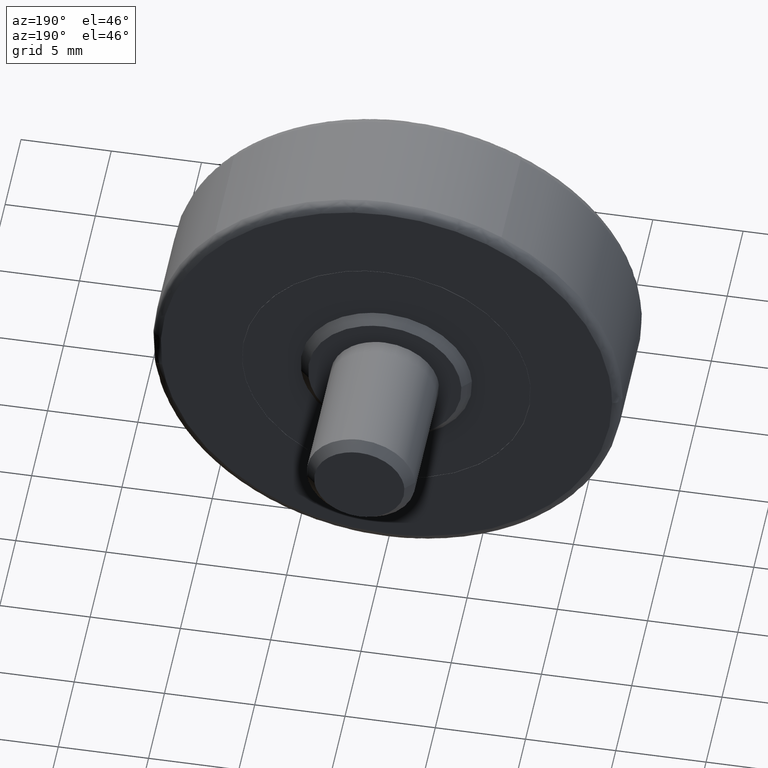
[diagram: clean part render]
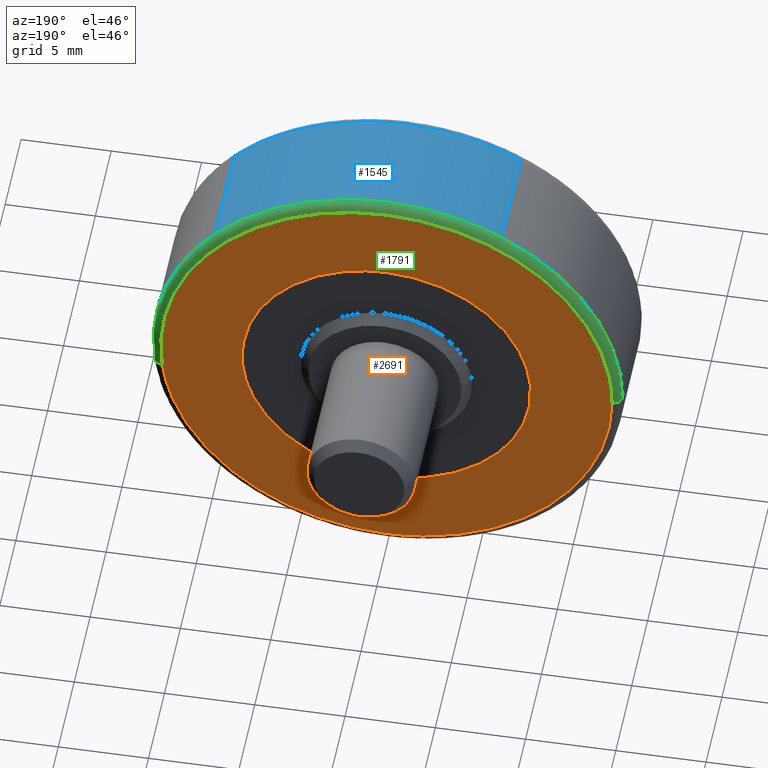
[diagram: same view with three faces highlighted in distinct colors, each labeled with its STEP entity id]
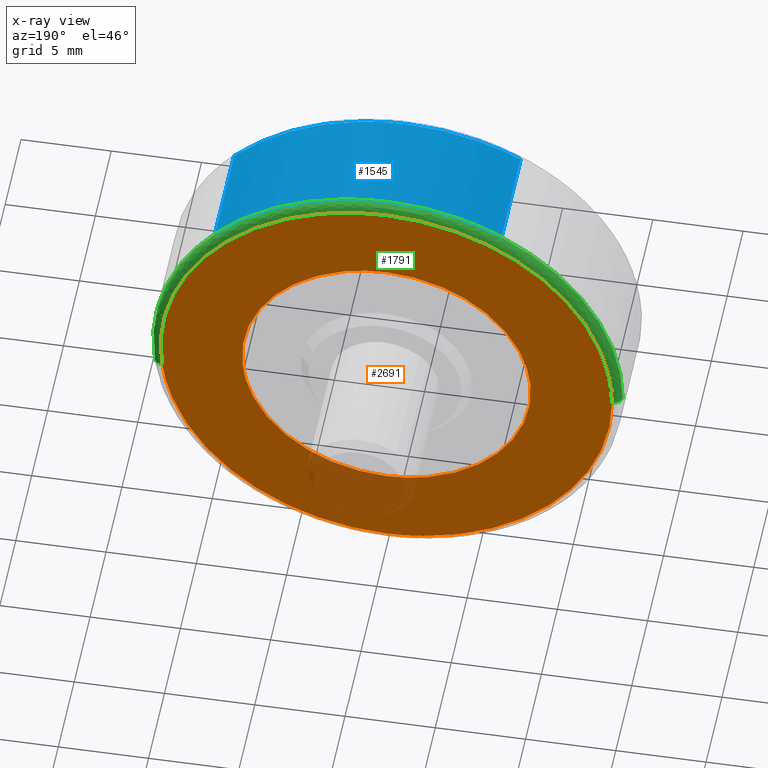
[diagram: x-ray of the same camera — body ghosted, the three highlighted faces saturated]
A machine part, auxiliary view with three faces highlighted in distinct colors.
The next image is the same camera in x-ray (body ghosted, the three faces saturated) — at least one of them is partly hidden behind the body in this view.
Their STEP definitions:

[orange] entity #2691 — the highlighted face is a freeform B-spline surface patch.
#593=CARTESIAN_POINT('',(-7.975339407077242,7.0,0.627663398512707));
#594=VERTEX_POINT('',#593);
#600=CARTESIAN_POINT('',(0.0,7.0,8.0));
#601=VERTEX_POINT('',#600);
#602=CARTESIAN_POINT('',(0.0,7.0,8.0));
#603=CARTESIAN_POINT('',(-7.395132645955739,7.000000000000001,8.0));
#604=CARTESIAN_POINT('',(-7.975339407077244,6.999999999999999,0.627663398512707));
#612=(BOUNDED_CURVE()B_SPLINE_CURVE(2,(#602,#603,#604),.UNSPECIFIED.,.F.,.U.)B_SPLINE_CURVE_WITH_KNOTS((3,3),(0.0,0.236331501976762),.UNSPECIFIED.)CURVE()GEOMETRIC_REPRESENTATION_ITEM()RATIONAL_B_SPLINE_CURVE((1.0,0.723120422716034,0.969723776361753))REPRESENTATION_ITEM(''));
#613=EDGE_CURVE('',#601,#594,#612,.T.);
#615=CARTESIAN_POINT('',(7.975339407077241,7.0,-0.627663398512707));
#616=VERTEX_POINT('',#615);
#617=CARTESIAN_POINT('',(7.975339407077241,7.0,-0.627663398512707));
#618=CARTESIAN_POINT('',(8.0,7.0,-0.314316150671510));
#619=CARTESIAN_POINT('',(8.0,7.0,0.0));
#620=CARTESIAN_POINT('',(8.0,6.999999999999999,8.0));
#621=CARTESIAN_POINT('',(0.0,7.0,8.0));
#629=(BOUNDED_CURVE()B_SPLINE_CURVE(2,(#617,#618,#619,#620,#621),.UNSPECIFIED.,.F.,.U.)B_SPLINE_CURVE_WITH_KNOTS((3,2,3),(0.736331501976762,0.750000000000000,1.0),.UNSPECIFIED.)CURVE()GEOMETRIC_REPRESENTATION_ITEM()RATIONAL_B_SPLINE_CURVE((0.969723776361753,0.983986358470514,1.0,0.707106781186548,1.0))REPRESENTATION_ITEM(''));
#630=EDGE_CURVE('',#616,#601,#629,.T.);
#706=CARTESIAN_POINT('',(0.0,7.0,-8.0));
#707=VERTEX_POINT('',#706);
#708=CARTESIAN_POINT('',(0.0,7.0,-8.0));
#709=CARTESIAN_POINT('',(7.395132645955737,7.000000000000001,-8.0));
#710=CARTESIAN_POINT('',(7.975339407077241,7.0,-0.627663398512707));
#718=(BOUNDED_CURVE()B_SPLINE_CURVE(2,(#708,#709,#710),.UNSPECIFIED.,.F.,.U.)B_SPLINE_CURVE_WITH_KNOTS((3,3),(0.500000000000000,0.736331501976762),.UNSPECIFIED.)CURVE()GEOMETRIC_REPRESENTATION_ITEM()RATIONAL_B_SPLINE_CURVE((1.0,0.723120422716034,0.969723776361753))REPRESENTATION_ITEM(''));
#719=EDGE_CURVE('',#707,#616,#718,.T.);
#721=CARTESIAN_POINT('',(-7.975339407077244,6.999999999999999,0.627663398512707));
#722=CARTESIAN_POINT('',(-8.0,7.0,0.314316150671509));
#723=CARTESIAN_POINT('',(-8.0,7.0,0.0));
#724=CARTESIAN_POINT('',(-8.0,6.999999999999999,-8.0));
#725=CARTESIAN_POINT('',(0.0,7.0,-8.0));
#733=(BOUNDED_CURVE()B_SPLINE_CURVE(2,(#721,#722,#723,#724,#725),.UNSPECIFIED.,.F.,.U.)B_SPLINE_CURVE_WITH_KNOTS((3,2,3),(0.236331501976762,0.250000000000000,0.500000000000000),.UNSPECIFIED.)CURVE()GEOMETRIC_REPRESENTATION_ITEM()RATIONAL_B_SPLINE_CURVE((0.969723776361753,0.983986358470514,1.0,0.707106781186548,1.0))REPRESENTATION_ITEM(''));
#734=EDGE_CURVE('',#594,#707,#733,.T.);
#1727=CARTESIAN_POINT('',(12.416395485421569,7.0,-1.443302866663593));
#1728=VERTEX_POINT('',#1727);
#1742=CARTESIAN_POINT('',(0.0,7.0,12.500000000000000));
#1743=VERTEX_POINT('',#1742);
#1744=CARTESIAN_POINT('',(12.416395485421571,7.000000000000001,-1.443302866663593));
#1745=CARTESIAN_POINT('',(12.500000000000000,7.0,-0.724072863727935));
#1746=CARTESIAN_POINT('',(12.500000000000000,7.0,-1.904718E-016));
#1747=CARTESIAN_POINT('',(12.499999999999998,6.999999999999999,12.499999999999998));
#1748=CARTESIAN_POINT('',(0.0,7.0,12.500000000000000));
#1756=(BOUNDED_CURVE()B_SPLINE_CURVE(2,(#1744,#1745,#1746,#1747,#1748),.UNSPECIFIED.,.F.,.U.)B_SPLINE_CURVE_WITH_KNOTS((3,2,3),(0.229999999999879,0.250000000000000,0.500000000000000),.UNSPECIFIED.)CURVE()GEOMETRIC_REPRESENTATION_ITEM()RATIONAL_B_SPLINE_CURVE((0.956886118190422,0.976568542494782,1.0,0.707106781186547,1.0))REPRESENTATION_ITEM(''));
#1757=EDGE_CURVE('',#1728,#1743,#1756,.T.);
#1759=CARTESIAN_POINT('',(-12.500000000289329,7.0,0.0));
#1760=VERTEX_POINT('',#1759);
#1761=CARTESIAN_POINT('',(0.0,7.0,12.500000000000000));
#1762=CARTESIAN_POINT('',(-12.499999999999936,6.999999999999999,12.499999999999998));
#1763=CARTESIAN_POINT('',(-12.500000000289324,7.0,0.0));
#1771=(BOUNDED_CURVE()B_SPLINE_CURVE(2,(#1761,#1762,#1763),.UNSPECIFIED.,.F.,.U.)B_SPLINE_CURVE_WITH_KNOTS((3,3),(0.500000000000000,0.749999999999999),.UNSPECIFIED.)CURVE()GEOMETRIC_REPRESENTATION_ITEM()RATIONAL_B_SPLINE_CURVE((1.0,0.707106781186548,0.999999999999998))REPRESENTATION_ITEM(''));
#1772=EDGE_CURVE('',#1743,#1760,#1771,.T.);
#1818=CARTESIAN_POINT('',(0.0,7.0,-12.500000000000000));
#1819=VERTEX_POINT('',#1818);
#1820=CARTESIAN_POINT('',(-12.500000000289329,7.0,0.0));
#1821=CARTESIAN_POINT('',(-12.499999999999998,6.999999999999999,-12.499999999999998));
#1822=CARTESIAN_POINT('',(0.0,7.0,-12.500000000000000));
#1830=(BOUNDED_CURVE()B_SPLINE_CURVE(2,(#1820,#1821,#1822),.UNSPECIFIED.,.F.,.U.)B_SPLINE_CURVE_WITH_KNOTS((3,3),(0.750000000000000,1.0),.UNSPECIFIED.)CURVE()GEOMETRIC_REPRESENTATION_ITEM()RATIONAL_B_SPLINE_CURVE((1.0,0.707106781186547,1.0))REPRESENTATION_ITEM(''));
#1831=EDGE_CURVE('',#1760,#1819,#1830,.T.);
#1833=CARTESIAN_POINT('',(0.0,7.0,-12.500000000000000));
#1834=CARTESIAN_POINT('',(11.131146260328800,7.0,-12.499999999999998));
#1835=CARTESIAN_POINT('',(12.416395485421571,7.000000000000001,-1.443302866663593));
#1843=(BOUNDED_CURVE()B_SPLINE_CURVE(2,(#1833,#1834,#1835),.UNSPECIFIED.,.F.,.U.)B_SPLINE_CURVE_WITH_KNOTS((3,3),(0.0,0.229999999999879),.UNSPECIFIED.)CURVE()GEOMETRIC_REPRESENTATION_ITEM()RATIONAL_B_SPLINE_CURVE((1.0,0.730538238691765,0.956886118190422))REPRESENTATION_ITEM(''));
#1844=EDGE_CURVE('',#1819,#1728,#1843,.T.);
#2674=CARTESIAN_POINT('',(-13.748746581368010,7.0,-13.748749951545150));
#2675=CARTESIAN_POINT('',(-13.748746581368010,7.0,13.748750622097401));
#2676=CARTESIAN_POINT('',(13.748679774131180,7.0,-13.748749951545150));
#2677=CARTESIAN_POINT('',(13.748679774131180,7.0,13.748750622097401));
#2678=B_SPLINE_SURFACE_WITH_KNOTS('',1,1,((#2674,#2676),(#2675,#2677)),.UNSPECIFIED.,.F.,.F.,.U.,(2,2),(2,2),(0.0,27.497500573642551),(0.0,27.497426355499190),.UNSPECIFIED.);
#2679=ORIENTED_EDGE('',*,*,#1831,.F.);
#2680=ORIENTED_EDGE('',*,*,#1772,.F.);
#2681=ORIENTED_EDGE('',*,*,#1757,.F.);
#2682=ORIENTED_EDGE('',*,*,#1844,.F.);
#2683=EDGE_LOOP('',(#2679,#2680,#2681,#2682));
#2684=FACE_OUTER_BOUND('',#2683,.T.);
#2685=ORIENTED_EDGE('',*,*,#719,.T.);
#2686=ORIENTED_EDGE('',*,*,#630,.T.);
#2687=ORIENTED_EDGE('',*,*,#613,.T.);
#2688=ORIENTED_EDGE('',*,*,#734,.T.);
#2689=EDGE_LOOP('',(#2685,#2686,#2687,#2688));
#2690=FACE_BOUND('',#2689,.T.);
#2691=ADVANCED_FACE('',(#2684,#2690),#2678,.T.);

[blue] entity #1545 — the highlighted face is a freeform B-spline surface patch.
#1328=CARTESIAN_POINT('',(-6.294854510387270,0.499999999997908,11.374304668552330));
#1329=VERTEX_POINT('',#1328);
#1345=CARTESIAN_POINT('',(-6.294854439516534,6.500000000020950,11.374304707774151));
#1346=VERTEX_POINT('',#1345);
#1347=CARTESIAN_POINT('',(-6.294854439516534,6.500000000020950,11.374304707774151));
#1348=CARTESIAN_POINT('',(-6.294854510387270,0.499999999997908,11.374304668552330));
#1349=QUASI_UNIFORM_CURVE('',1,(#1347,#1348),.UNSPECIFIED.,.F.,.U.);
#1350=EDGE_CURVE('',#1346,#1329,#1349,.T.);
#1397=CARTESIAN_POINT('',(9.584605850357686,6.500000000000001,8.782672184095716));
#1398=VERTEX_POINT('',#1397);
#1414=CARTESIAN_POINT('',(9.584605856251752,0.500000000000005,8.782672177663475));
#1415=VERTEX_POINT('',#1414);
#1416=CARTESIAN_POINT('',(9.584605850357686,6.500000000000001,8.782672184095716));
#1417=CARTESIAN_POINT('',(9.584605856251752,0.500000000000005,8.782672177663475));
#1418=QUASI_UNIFORM_CURVE('',1,(#1416,#1417),.UNSPECIFIED.,.F.,.U.);
#1419=EDGE_CURVE('',#1398,#1415,#1418,.T.);
#1471=CARTESIAN_POINT('',(9.584605378531609,6.650000000173204,8.782672699003580));
#1472=CARTESIAN_POINT('',(2.665704710325895,6.650000000173206,16.333327816270344));
#1473=CARTESIAN_POINT('',(-6.294856519306932,6.650000000173203,11.374303556760690));
#1474=CARTESIAN_POINT('',(9.584605378531609,0.346249999979084,8.782672699003580));
#1475=CARTESIAN_POINT('',(2.665704710325895,0.346249999979084,16.333327816270344));
#1476=CARTESIAN_POINT('',(-6.294856519306932,0.346249999979084,11.374303556760690));
#1484=(BOUNDED_SURFACE()B_SPLINE_SURFACE(2,1,((#1471,#1474),(#1472,#1475),(#1473,#1476)),.UNSPECIFIED.,.F.,.F.,.U.)B_SPLINE_SURFACE_WITH_KNOTS((3,3),(2,2),(0.0,18.013727329462760),(0.0,6.303750000194120),.UNSPECIFIED.)GEOMETRIC_REPRESENTATION_ITEM()RATIONAL_B_SPLINE_SURFACE(((1.0,1.0),(0.753969696196700,0.753969696196700),(0.921270302782944,0.921270302782944)))REPRESENTATION_ITEM('')SURFACE());
#1485=CARTESIAN_POINT('',(0.0,0.500000000000000,13.0));
#1486=VERTEX_POINT('',#1485);
#1487=CARTESIAN_POINT('',(0.0,0.500000000000000,13.0));
#1488=CARTESIAN_POINT('',(-3.357351512087067,0.500000000000000,13.0));
#1489=CARTESIAN_POINT('',(-6.294854510387270,0.499999999997908,11.374304668552334));
#1497=(BOUNDED_CURVE()B_SPLINE_CURVE(2,(#1487,#1488,#1489),.UNSPECIFIED.,.F.,.U.)B_SPLINE_CURVE_WITH_KNOTS((3,3),(0.500000000000000,0.582484261791916),.UNSPECIFIED.)CURVE()GEOMETRIC_REPRESENTATION_ITEM()RATIONAL_B_SPLINE_CURVE((1.0,0.903363676249257,0.870495159113431))REPRESENTATION_ITEM(''));
#1498=EDGE_CURVE('',#1486,#1329,#1497,.T.);
#1499=ORIENTED_EDGE('',*,*,#1498,.F.);
#1500=CARTESIAN_POINT('',(9.584605856251752,0.500000000000005,8.782672177663475));
#1501=CARTESIAN_POINT('',(5.720137745613223,0.500000000000000,13.000000000000004));
#1502=CARTESIAN_POINT('',(0.0,0.500000000000000,13.0));
#1510=(BOUNDED_CURVE()B_SPLINE_CURVE(2,(#1500,#1501,#1502),.UNSPECIFIED.,.F.,.U.)B_SPLINE_CURVE_WITH_KNOTS((3,3),(0.368415192661570,0.500000000000000),.UNSPECIFIED.)CURVE()GEOMETRIC_REPRESENTATION_ITEM()RATIONAL_B_SPLINE_CURVE((0.853959782865036,0.845838808926797,1.0))REPRESENTATION_ITEM(''));
#1511=EDGE_CURVE('',#1415,#1486,#1510,.T.);
#1512=ORIENTED_EDGE('',*,*,#1511,.F.);
#1513=ORIENTED_EDGE('',*,*,#1419,.F.);
#1514=CARTESIAN_POINT('',(0.0,6.500000000000000,13.0));
#1515=VERTEX_POINT('',#1514);
#1516=CARTESIAN_POINT('',(9.584605850357686,6.500000000000001,8.782672184095716));
#1517=CARTESIAN_POINT('',(5.720137735199796,6.500000000000000,13.000000000000004));
#1518=CARTESIAN_POINT('',(0.0,6.500000000000000,13.0));
#1526=(BOUNDED_CURVE()B_SPLINE_CURVE(2,(#1516,#1517,#1518),.UNSPECIFIED.,.F.,.U.)B_SPLINE_CURVE_WITH_KNOTS((3,3),(0.368415192864190,0.500000000000000),.UNSPECIFIED.)CURVE()GEOMETRIC_REPRESENTATION_ITEM()RATIONAL_B_SPLINE_CURVE((0.853959782840026,0.845838809164181,1.0))REPRESENTATION_ITEM(''));
#1527=EDGE_CURVE('',#1398,#1515,#1526,.T.);
#1528=ORIENTED_EDGE('',*,*,#1527,.T.);
#1529=CARTESIAN_POINT('',(0.0,6.500000000000000,13.0));
#1530=CARTESIAN_POINT('',(-3.357351468885801,6.500000000000000,12.999999999999996));
#1531=CARTESIAN_POINT('',(-6.294854439516534,6.500000000020949,11.374304707774151));
#1539=(BOUNDED_CURVE()B_SPLINE_CURVE(2,(#1529,#1530,#1531),.UNSPECIFIED.,.F.,.U.)B_SPLINE_CURVE_WITH_KNOTS((3,3),(0.500000000000000,0.582484260833104),.UNSPECIFIED.)CURVE()GEOMETRIC_REPRESENTATION_ITEM()RATIONAL_B_SPLINE_CURVE((1.0,0.903363677372575,0.870495159877570))REPRESENTATION_ITEM(''));
#1540=EDGE_CURVE('',#1515,#1346,#1539,.T.);
#1541=ORIENTED_EDGE('',*,*,#1540,.T.);
#1542=ORIENTED_EDGE('',*,*,#1350,.T.);
#1543=EDGE_LOOP('',(#1499,#1512,#1513,#1528,#1541,#1542));
#1544=FACE_OUTER_BOUND('',#1543,.T.);
#1545=ADVANCED_FACE('',(#1544),#1484,.T.);

[green] entity #1791 — the highlighted face is a freeform B-spline surface patch.
#1345=CARTESIAN_POINT('',(-6.294854439516534,6.500000000020950,11.374304707774151));
#1346=VERTEX_POINT('',#1345);
#1352=CARTESIAN_POINT('',(-13.0,6.500000000167523,0.0));
#1353=VERTEX_POINT('',#1352);
#1354=CARTESIAN_POINT('',(-6.294854439516534,6.500000000020949,11.374304707774151));
#1355=CARTESIAN_POINT('',(-12.999999999999964,6.500000000068768,7.663491925506884));
#1356=CARTESIAN_POINT('',(-12.999999999999996,6.500000000167523,0.0));
#1364=(BOUNDED_CURVE()B_SPLINE_CURVE(2,(#1354,#1355,#1356),.UNSPECIFIED.,.F.,.U.)B_SPLINE_CURVE_WITH_KNOTS((3,3),(0.582484260833104,0.749999999999999),.UNSPECIFIED.)CURVE()GEOMETRIC_REPRESENTATION_ITEM()RATIONAL_B_SPLINE_CURVE((0.870495159877570,0.803743103813973,0.999999999999998))REPRESENTATION_ITEM(''));
#1365=EDGE_CURVE('',#1346,#1353,#1364,.T.);
#1382=CARTESIAN_POINT('',(12.913051304205510,6.500000000168585,-1.501034981256744));
#1383=VERTEX_POINT('',#1382);
#1397=CARTESIAN_POINT('',(9.584605850357686,6.500000000000001,8.782672184095716));
#1398=VERTEX_POINT('',#1397);
#1399=CARTESIAN_POINT('',(12.913051304205508,6.500000000168585,-1.501034981256744));
#1400=CARTESIAN_POINT('',(13.0,6.500000000000000,-0.753035778277233));
#1401=CARTESIAN_POINT('',(13.0,6.500000000000000,-1.904718E-016));
#1402=CARTESIAN_POINT('',(13.000000000000005,6.500000000000000,5.055422710082578));
#1403=CARTESIAN_POINT('',(9.584605850357686,6.500000000000001,8.782672184095716));
#1411=(BOUNDED_CURVE()B_SPLINE_CURVE(2,(#1399,#1400,#1401,#1402,#1403),.UNSPECIFIED.,.F.,.U.)B_SPLINE_CURVE_WITH_KNOTS((3,2,3),(0.229999999999875,0.250000000000000,0.368415192864190),.UNSPECIFIED.)CURVE()GEOMETRIC_REPRESENTATION_ITEM()RATIONAL_B_SPLINE_CURVE((0.956886118190413,0.976568542494777,1.0,0.861267972022367,0.853959782840026))REPRESENTATION_ITEM(''));
#1412=EDGE_CURVE('',#1383,#1398,#1411,.T.);
#1514=CARTESIAN_POINT('',(0.0,6.500000000000000,13.0));
#1515=VERTEX_POINT('',#1514);
#1516=CARTESIAN_POINT('',(9.584605850357686,6.500000000000001,8.782672184095716));
#1517=CARTESIAN_POINT('',(5.720137735199796,6.500000000000000,13.000000000000004));
#1518=CARTESIAN_POINT('',(0.0,6.500000000000000,13.0));
#1526=(BOUNDED_CURVE()B_SPLINE_CURVE(2,(#1516,#1517,#1518),.UNSPECIFIED.,.F.,.U.)B_SPLINE_CURVE_WITH_KNOTS((3,3),(0.368415192864190,0.500000000000000),.UNSPECIFIED.)CURVE()GEOMETRIC_REPRESENTATION_ITEM()RATIONAL_B_SPLINE_CURVE((0.853959782840026,0.845838809164181,1.0))REPRESENTATION_ITEM(''));
#1527=EDGE_CURVE('',#1398,#1515,#1526,.T.);
#1529=CARTESIAN_POINT('',(0.0,6.500000000000000,13.0));
#1530=CARTESIAN_POINT('',(-3.357351468885801,6.500000000000000,12.999999999999996));
#1531=CARTESIAN_POINT('',(-6.294854439516534,6.500000000020949,11.374304707774151));
#1539=(BOUNDED_CURVE()B_SPLINE_CURVE(2,(#1529,#1530,#1531),.UNSPECIFIED.,.F.,.U.)B_SPLINE_CURVE_WITH_KNOTS((3,3),(0.500000000000000,0.582484260833104),.UNSPECIFIED.)CURVE()GEOMETRIC_REPRESENTATION_ITEM()RATIONAL_B_SPLINE_CURVE((1.0,0.903363677372575,0.870495159877570))REPRESENTATION_ITEM(''));
#1540=EDGE_CURVE('',#1515,#1346,#1539,.T.);
#1696=CARTESIAN_POINT('',(12.381951931486411,6.998796150819830,-1.439297674520162));
#1697=CARTESIAN_POINT('',(12.465324361183672,6.998796150819829,-0.722063543459042));
#1698=CARTESIAN_POINT('',(12.465324361183665,6.998796150819832,-2.289767E-015));
#1699=CARTESIAN_POINT('',(12.465324361183670,6.998796150819831,12.465324361183665));
#1700=CARTESIAN_POINT('',(3.053023E-015,6.998796150819832,12.465324361183665));
#1701=CARTESIAN_POINT('',(-12.465324361183665,6.998796150819831,12.465324361183670));
#1702=CARTESIAN_POINT('',(-12.465324361183665,6.998796150819832,3.816279E-015));
#1703=CARTESIAN_POINT('',(12.951661183430012,7.038668251726013,-1.505521578958839));
#1704=CARTESIAN_POINT('',(13.038869683951839,7.038668251726014,-0.755286599361377));
#1705=CARTESIAN_POINT('',(13.038869683951841,7.038668251726013,-2.395122E-015));
#1706=CARTESIAN_POINT('',(13.038869683951843,7.038668251726013,13.038869683951839));
#1707=CARTESIAN_POINT('',(3.193497E-015,7.038668251726013,13.038869683951841));
#1708=CARTESIAN_POINT('',(-13.038869683951839,7.038668251726013,13.038869683951848));
#1709=CARTESIAN_POINT('',(-13.038869683951841,7.038668251726013,3.991871E-015));
#1710=CARTESIAN_POINT('',(12.911842763770201,6.465137876223214,-1.500893022884922));
#1711=CARTESIAN_POINT('',(12.998783151605755,6.465137876223213,-0.752964556007180));
#1712=CARTESIAN_POINT('',(12.998783151605759,6.465137876223211,-2.387759E-015));
#1713=CARTESIAN_POINT('',(12.998783151605753,6.465137876223210,12.998783151605750));
#1714=CARTESIAN_POINT('',(3.183678E-015,6.465137876223211,12.998783151605759));
#1715=CARTESIAN_POINT('',(-12.998783151605750,6.465137876223210,12.998783151605753));
#1716=CARTESIAN_POINT('',(-12.998783151605759,6.465137876223211,3.979598E-015));
#1724=(BOUNDED_SURFACE()B_SPLINE_SURFACE(2,2,((#1696,#1703,#1710),(#1697,#1704,#1711),(#1698,#1705,#1712),(#1699,#1706,#1713),(#1700,#1707,#1714),(#1701,#1708,#1715),(#1702,#1709,#1716)),.UNSPECIFIED.,.F.,.F.,.U.)B_SPLINE_SURFACE_WITH_KNOTS((3,2,2,3),(3,3),(0.0,1.722965485087938,23.260054588055880,44.797143691023827),(0.0,0.911185626328581),.UNSPECIFIED.)GEOMETRIC_REPRESENTATION_ITEM()RATIONAL_B_SPLINE_SURFACE(((0.876476062957866,0.573569785894957,0.871620869846872),(0.894504498568560,0.585367673356197,0.889549437885503),(0.915966918015928,0.599412774925396,0.910892967387726),(0.647686419071605,0.423848837879593,0.644098594174998),(0.915966918015928,0.599412774925396,0.910892967387726),(0.647686419071605,0.423848837879593,0.644098594174998),(0.915966918015928,0.599412774925396,0.910892967387726)))REPRESENTATION_ITEM('')SURFACE());
#1725=ORIENTED_EDGE('',*,*,#1527,.F.);
#1726=ORIENTED_EDGE('',*,*,#1412,.F.);
#1727=CARTESIAN_POINT('',(12.416395485421569,7.0,-1.443302866663593));
#1728=VERTEX_POINT('',#1727);
#1729=CARTESIAN_POINT('',(12.416395485421571,7.0,-1.443302866663593));
#1730=CARTESIAN_POINT('',(12.913051303871143,6.999999998774669,-1.501034981213032));
#1731=CARTESIAN_POINT('',(12.913051304205510,6.500000000168585,-1.501034981256744));
#1739=(BOUNDED_CURVE()B_SPLINE_CURVE(2,(#1729,#1730,#1731),.UNSPECIFIED.,.F.,.U.)B_SPLINE_CURVE_WITH_KNOTS((3,3),(-1.736413118535826,-0.276558718709523),.UNSPECIFIED.)CURVE()GEOMETRIC_REPRESENTATION_ITEM()RATIONAL_B_SPLINE_CURVE((0.850203275429141,0.599621899761129,0.845789311663335))REPRESENTATION_ITEM(''));
#1740=EDGE_CURVE('',#1728,#1383,#1739,.T.);
#1741=ORIENTED_EDGE('',*,*,#1740,.F.);
#1742=CARTESIAN_POINT('',(0.0,7.0,12.500000000000000));
#1743=VERTEX_POINT('',#1742);
#1744=CARTESIAN_POINT('',(12.416395485421571,7.000000000000001,-1.443302866663593));
#1745=CARTESIAN_POINT('',(12.500000000000000,7.0,-0.724072863727935));
#1746=CARTESIAN_POINT('',(12.500000000000000,7.0,-1.904718E-016));
#1747=CARTESIAN_POINT('',(12.499999999999998,6.999999999999999,12.499999999999998));
#1748=CARTESIAN_POINT('',(0.0,7.0,12.500000000000000));
#1756=(BOUNDED_CURVE()B_SPLINE_CURVE(2,(#1744,#1745,#1746,#1747,#1748),.UNSPECIFIED.,.F.,.U.)B_SPLINE_CURVE_WITH_KNOTS((3,2,3),(0.229999999999879,0.250000000000000,0.500000000000000),.UNSPECIFIED.)CURVE()GEOMETRIC_REPRESENTATION_ITEM()RATIONAL_B_SPLINE_CURVE((0.956886118190422,0.976568542494782,1.0,0.707106781186547,1.0))REPRESENTATION_ITEM(''));
#1757=EDGE_CURVE('',#1728,#1743,#1756,.T.);
#1758=ORIENTED_EDGE('',*,*,#1757,.T.);
#1759=CARTESIAN_POINT('',(-12.500000000289329,7.0,0.0));
#1760=VERTEX_POINT('',#1759);
#1761=CARTESIAN_POINT('',(0.0,7.0,12.500000000000000));
#1762=CARTESIAN_POINT('',(-12.499999999999936,6.999999999999999,12.499999999999998));
#1763=CARTESIAN_POINT('',(-12.500000000289324,7.0,0.0));
#1771=(BOUNDED_CURVE()B_SPLINE_CURVE(2,(#1761,#1762,#1763),.UNSPECIFIED.,.F.,.U.)B_SPLINE_CURVE_WITH_KNOTS((3,3),(0.500000000000000,0.749999999999999),.UNSPECIFIED.)CURVE()GEOMETRIC_REPRESENTATION_ITEM()RATIONAL_B_SPLINE_CURVE((1.0,0.707106781186548,0.999999999999998))REPRESENTATION_ITEM(''));
#1772=EDGE_CURVE('',#1743,#1760,#1771,.T.);
#1773=ORIENTED_EDGE('',*,*,#1772,.T.);
#1774=CARTESIAN_POINT('',(-12.500000000289331,7.0,0.0));
#1775=CARTESIAN_POINT('',(-12.999999999664951,6.999999999421346,0.0));
#1776=CARTESIAN_POINT('',(-13.0,6.500000000167523,0.0));
#1784=(BOUNDED_CURVE()B_SPLINE_CURVE(2,(#1774,#1775,#1776),.UNSPECIFIED.,.F.,.U.)B_SPLINE_CURVE_WITH_KNOTS((3,3),(-1.736413119874396,-0.276558718705153),.UNSPECIFIED.)CURVE()GEOMETRIC_REPRESENTATION_ITEM()RATIONAL_B_SPLINE_CURVE((0.888510408632832,0.626638727572373,0.883897566895505))REPRESENTATION_ITEM(''));
#1785=EDGE_CURVE('',#1760,#1353,#1784,.T.);
#1786=ORIENTED_EDGE('',*,*,#1785,.T.);
#1787=ORIENTED_EDGE('',*,*,#1365,.F.);
#1788=ORIENTED_EDGE('',*,*,#1540,.F.);
#1789=EDGE_LOOP('',(#1725,#1726,#1741,#1758,#1773,#1786,#1787,#1788));
#1790=FACE_OUTER_BOUND('',#1789,.T.);
#1791=ADVANCED_FACE('',(#1790),#1724,.T.);